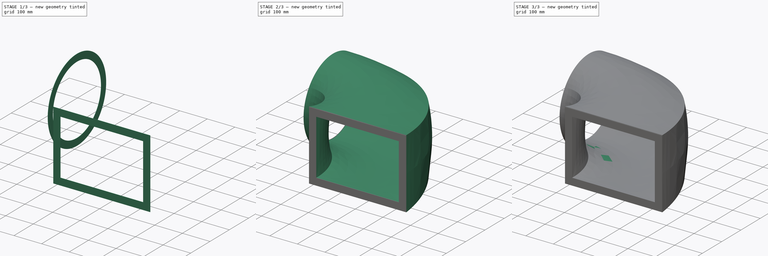
[diagram: build sequence overview — one tinted view per stage of 3, left to right]
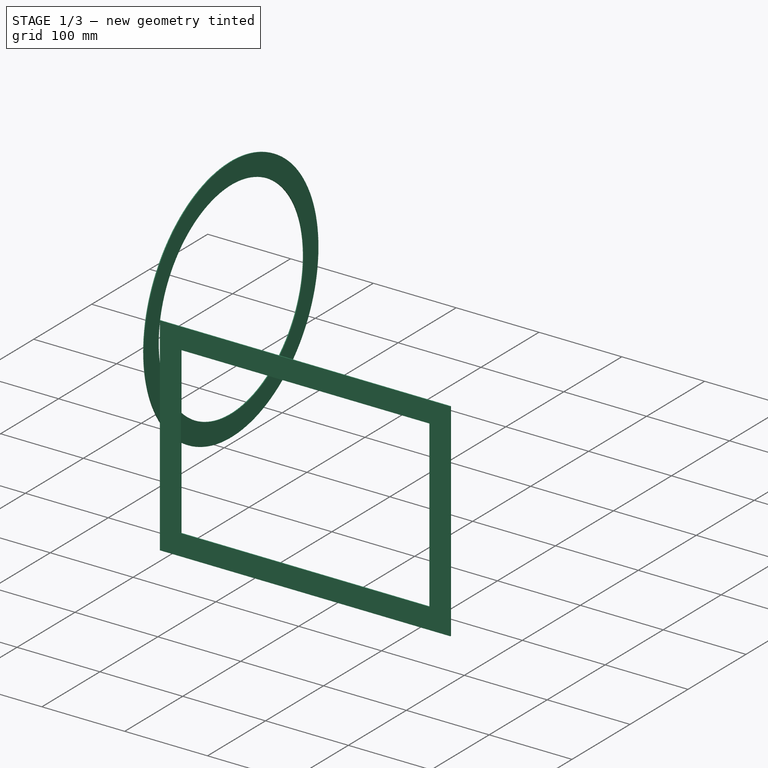
[diagram: stage 1 of 3 — iso view after this stage's code; geometry added in this stage tinted green]
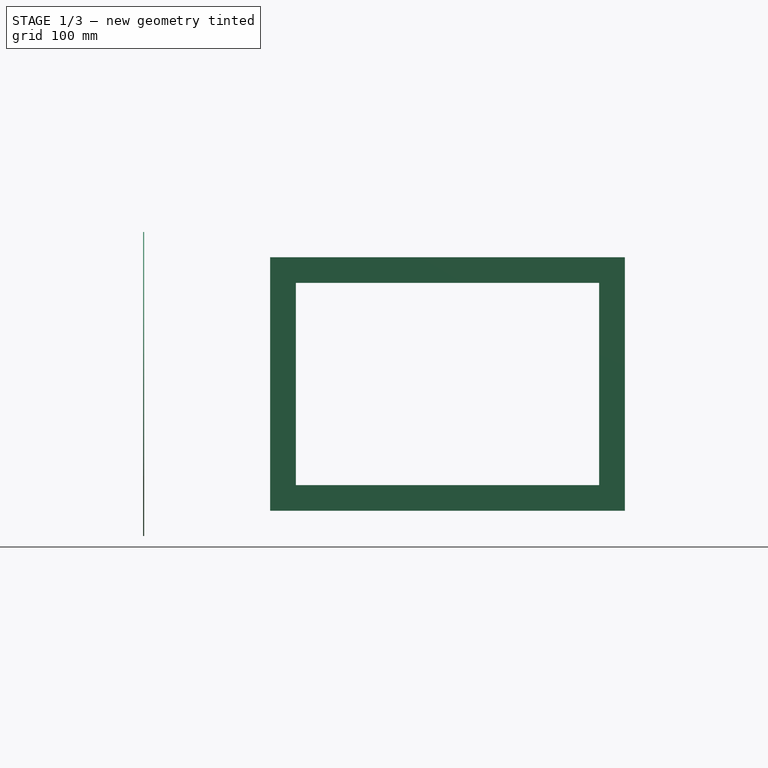
[diagram: stage 1 of 3 — front view after this stage's code; geometry added in this stage tinted green]
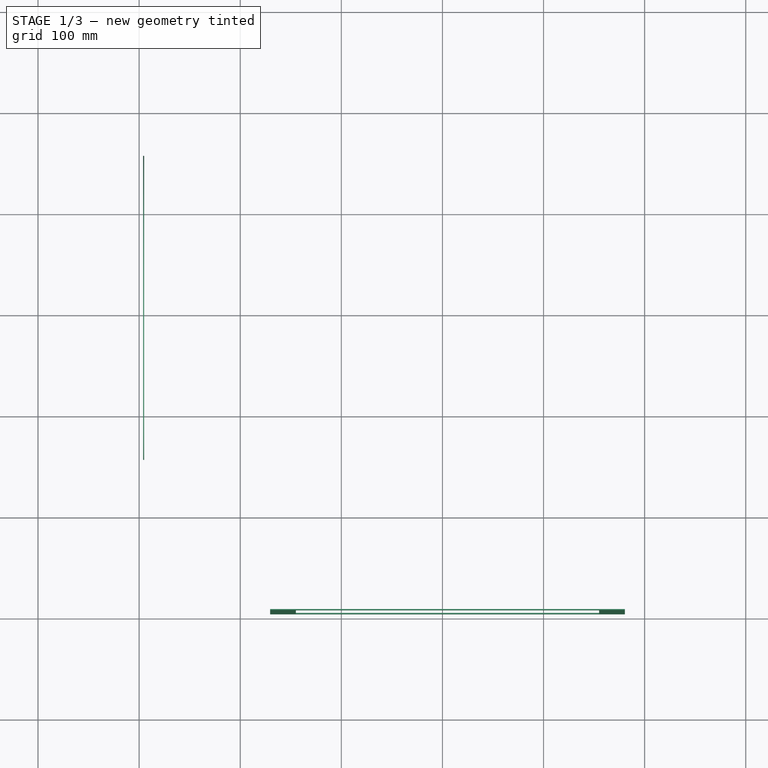
[diagram: stage 1 of 3 — top view after this stage's code; geometry added in this stage tinted green]
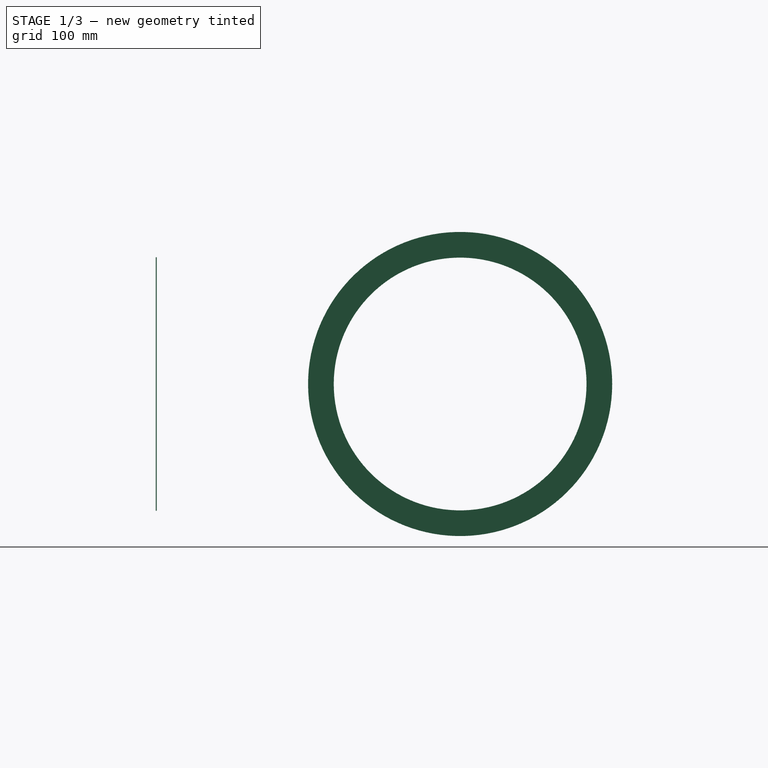
[diagram: stage 1 of 3 — right view after this stage's code; geometry added in this stage tinted green]
FCSTD DOCUMENT  (FreeCAD 1.0R38641 +468 (Git))
Label: Duct_curved_rectangular_circular_complete_R05
License: All rights reserved
LicenseURL: http://en.wikipedia.org/wiki/All_rights_reserved
objects: Sketcher::SketchObject×8, App::DocumentObjectGroup×4, TechDraw::DrawViewPart×4, Part::Sweep×3, App::MaterialObjectPython×2, Part::Cut×2, Part::Extrusion×2, Spreadsheet::Sheet×1, TechDraw::DrawSVGTemplate×1, TechDraw::DrawViewSpreadsheet×1, Part::Part2DObjectPython×1, App::TextDocument×1, App::VarSet×1, TechDraw::DrawViewSection×1, TechDraw::DrawPage×1, App::DocumentObjectGroupPython×1
note: 24 computed .brp shape members not serialized (recipe doc carries the construction recipe); baked Part::Feature solids carry a one-line shape summary decoded from their .brp

FEATURE [Part::Extrusion] Extrude  label="Flange_01_rectangular"
  Base = -> Sketch038
  Base_Area = 27980.6
  Dir = (0,-1,2e-16)
  DirMode = 2
  FaceMakerClass = Part::FaceMakerBullseye
  FaceMakerMode = 3
  LengthFwd = 1
  LengthRev = 0
  Material = -> Material049
  Solid = true
  Symmetric = false
  expr: Base_Area = .Shape.Face10.Area
  expr: LengthFwd = VarSet.Flange_Thickness
  expr: Material = VarSet.Materials_Sheet_metal
  expr: Visibility = VarSet.Flange_Flange_01 * (1 - VarSet.Duct_Show_volume_only)
FEATURE [Part::Extrusion] Extrude001  label="Flange_02_circular"
  Base = -> Sketch037
  Base_Area = 21975.9
  Dir = (1,-3.36025e-11,0)
  DirMode = 2
  FaceMakerClass = Part::FaceMakerBullseye
  FaceMakerMode = 3
  LengthFwd = 1
  LengthRev = 0
  Material = -> Material049
  Reversed = true
  Solid = true
  Symmetric = false
  expr: Base_Area = .Shape.Face4.Area
  expr: LengthFwd = VarSet.Flange_Thickness
  expr: Material = VarSet.Materials_Sheet_metal
  expr: Visibility = VarSet.Flange_Flange_02 * (1 - VarSet.Duct_Show_volume_only)
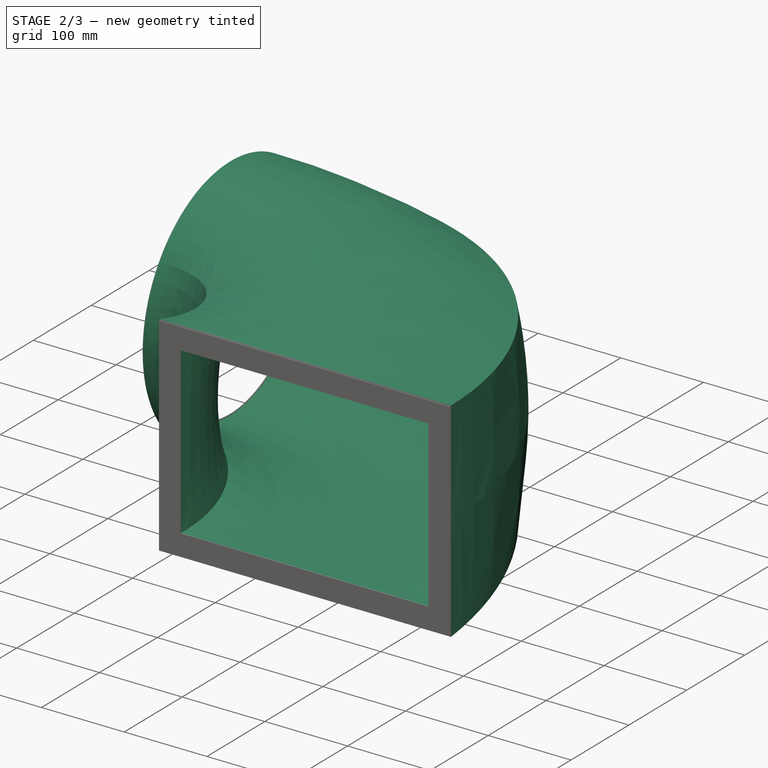
[diagram: stage 2 of 3 — iso view after this stage's code; geometry added in this stage tinted green]
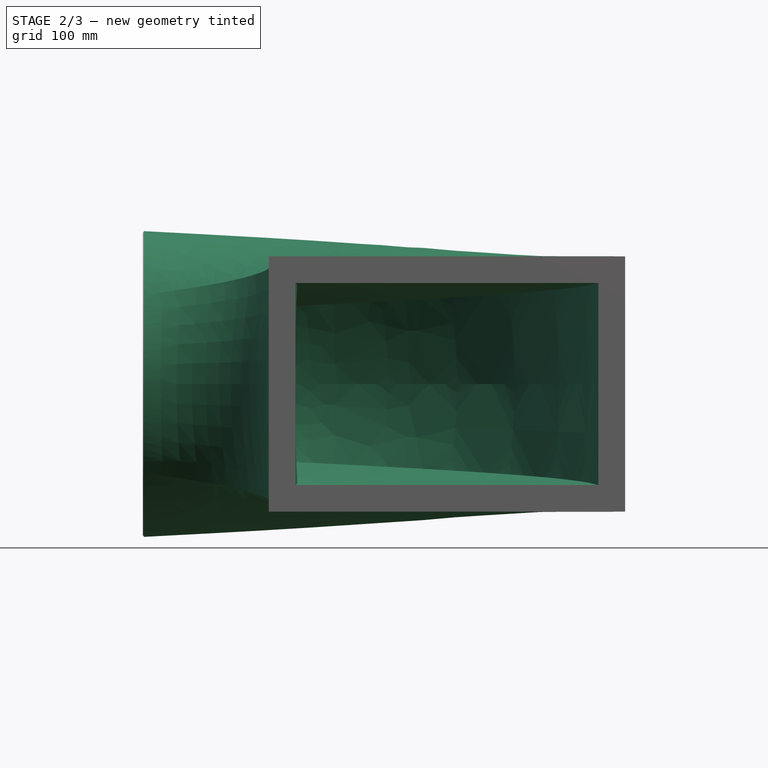
[diagram: stage 2 of 3 — front view after this stage's code; geometry added in this stage tinted green]
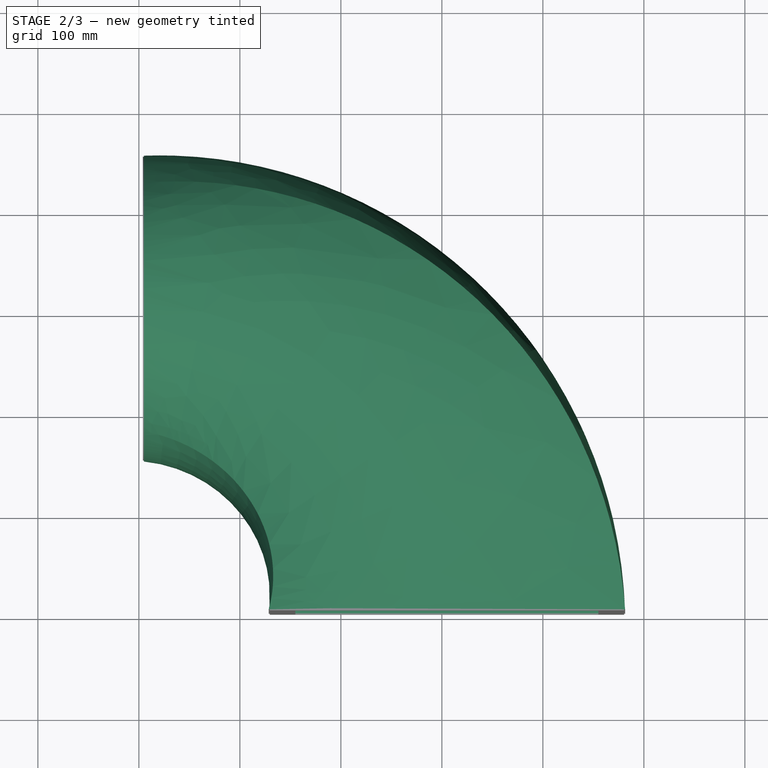
[diagram: stage 2 of 3 — top view after this stage's code; geometry added in this stage tinted green]
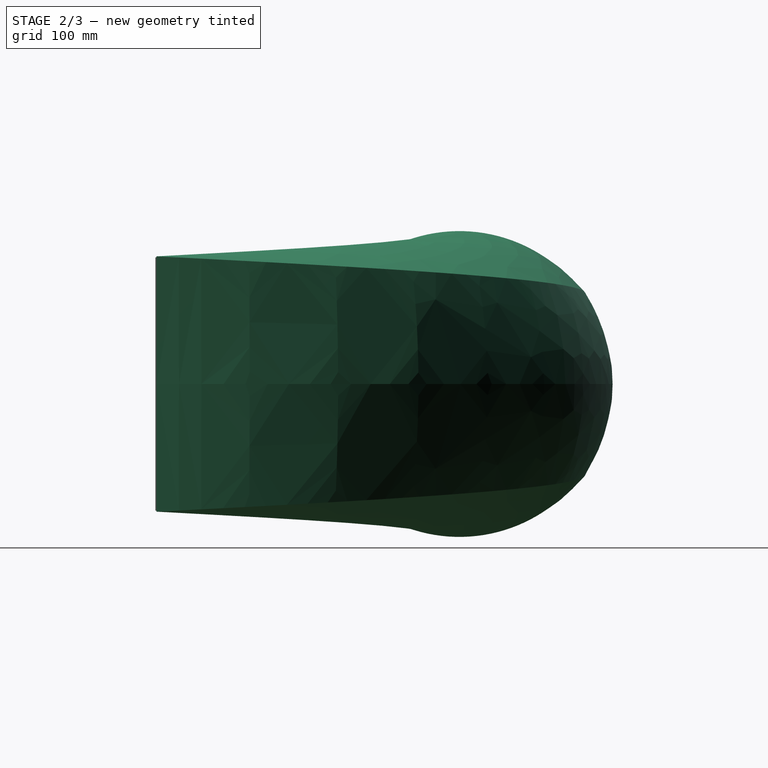
[diagram: stage 2 of 3 — right view after this stage's code; geometry added in this stage tinted green]
FEATURE [Sketcher::SketchObject] Sketch033  label="Opening_02_external_circular_"
  ArcFitTolerance = 0
  AttachmentSupport = -> [Arc]
  FullyConstrained = true
  MakeInternals = false
  MapMode = 7
  Placement = pos=(5,305,0) rot=(0.57735,0.57735,0.57735;2.0944rad)
  expr: .Constraints.Diameter = VarSet.Duct_Opening2_diameter + 2 * VarSet.Duct_Sheet_thickness
  expr: .Constraints.Horizontal_position = VarSet.Duct_Opening2_horizontal_position
  expr: .Constraints.Vertical_position = VarSet.Duct_Opening2_vertical_position
  expr: AttachmentSupport = VarSet.Duct_Axis
  expr: MapPathParameter = 1 - VarSet.Duct_Flip_axis
  sketch-geometry (1):
    g0: Circle CenterX=0 CenterY=0 CenterZ=0 NormalX=0 NormalY=0 NormalZ=1 AngleXU=0 Radius=126
  constraints (3):
    c: Diameter(g0) = 252  'Diameter'
    c: DistanceY(g-1,g0) = 0  'Vertical_position'
    c: DistanceX(g-1,g0) = 0  'Horizontal_position'
FEATURE [Sketcher::SketchObject] Sketch034  label="Opening_01_external_rectangular_"
  ArcFitTolerance = 0
  AttachmentSupport = -> [Arc]
  FullyConstrained = true
  MakeInternals = false
  MapMode = 7
  Placement = pos=(305,5,0) rot=(1,0,0;1.5708rad)
  expr: .AttachmentOffset.Base.z = 0
  expr: .Constraints.Height = VarSet.Duct_Opening1_height + 2 * VarSet.Duct_Sheet_thickness
  expr: .Constraints.Horizontal_position = VarSet.Duct_Opening1_horizontal_position
  expr: .Constraints.Vertical_position = VarSet.Duct_Opening1_vertical_position
  expr: .Constraints.Width = VarSet.Duct_Opening1_width + 2 * VarSet.Duct_Sheet_thickness
  expr: AttachmentSupport = VarSet.Duct_Axis
  expr: MapPathParameter = VarSet.Duct_Flip_axis
  sketch-geometry (7):
    g0: LineSegment StartX=-151 StartY=101 StartZ=0 EndX=151 EndY=101 EndZ=0
    g1: LineSegment StartX=151 StartY=101 StartZ=0 EndX=151 EndY=-101 EndZ=0
    g2: LineSegment StartX=151 StartY=-101 StartZ=0 EndX=-151 EndY=-101 EndZ=0
    g3: LineSegment StartX=-151 StartY=-101 StartZ=0 EndX=-151 EndY=101 EndZ=0
    g4: LineSegment [constr] StartX=-151 StartY=101 StartZ=0 EndX=151 EndY=-101 EndZ=0
    g5: LineSegment [constr] StartX=-151 StartY=-101 StartZ=0 EndX=151 EndY=101 EndZ=0
    g6: GeomPoint [constr] X=0 Y=0 Z=0
  constraints (18):
    c: Coincident(g0,g1)
    c: Coincident(g1,g2)
    c: Coincident(g2,g3)
    c: Coincident(g3,g0)
    c: Horizontal(g0)
    c: Horizontal(g2)
    c: Vertical(g1)
    c: Vertical(g3)
    c: Coincident(g4,g0)
    c: Coincident(g4,g1)
    c: Coincident(g5,g2)
    c: Coincident(g5,g0)
    c: DistanceX(g0,g0) = 302  'Width'
    c: DistanceY(g1,g1) = 202  'Height'
    c: PointOnObject(g6,g5)
    c: PointOnObject(g6,g4)
    c: DistanceY(g-1,g6) = 0  'Vertical_position'
    c: DistanceX(g-1,g6) = 0  'Horizontal_position'
FEATURE [Part::Sweep] Sweep003  label="Duct_external_volume_"
  Frenet = true
  Sections = -> [Sketch034,Sketch033]
  Solid = true
  Spine = -> Arc
  Transition = 0
  expr: Spine = VarSet.Duct_Axis
FEATURE [Sketcher::SketchObject] Sketch035  label="Opening_02_external_circular_insulation"
  ArcFitTolerance = 0
  AttachmentSupport = -> [Arc]
  FullyConstrained = true
  MakeInternals = false
  MapMode = 7
  Placement = pos=(5,305,0) rot=(0.57735,0.57735,0.57735;2.0944rad)
  expr: .Constraints.Diameter = VarSet.Duct_Opening2_diameter + 2 * VarSet.Duct_Sheet_thickness + 2 * VarSet.Insulation_Thickness
  expr: .Constraints.Horizontal_position = VarSet.Duct_Opening2_horizontal_position
  expr: .Constraints.Vertical_position = VarSet.Duct_Opening2_vertical_position
  expr: AttachmentSupport = VarSet.Duct_Axis
  expr: MapPathParameter = 1 - VarSet.Duct_Flip_axis
  sketch-geometry (1):
    g0: Circle CenterX=0 CenterY=0 CenterZ=0 NormalX=0 NormalY=0 NormalZ=1 AngleXU=0 Radius=151.4
  constraints (3):
    c: Diameter(g0) = 302.8  'Diameter'
    c: DistanceY(g-1,g0) = 0  'Vertical_position'
    c: DistanceX(g-1,g0) = 0  'Horizontal_position'
FEATURE [Sketcher::SketchObject] Sketch036  label="Opening_01_external_rectangular_insulation"
  ArcFitTolerance = 0
  AttachmentSupport = -> [Arc]
  FullyConstrained = true
  MakeInternals = false
  MapMode = 7
  Placement = pos=(305,5,0) rot=(1,0,0;1.5708rad)
  expr: .AttachmentOffset.Base.z = 0
  expr: .Constraints.Height = VarSet.Duct_Opening1_height + 2 * VarSet.Duct_Sheet_thickness + 2 * VarSet.Insulation_Thickness
  expr: .Constraints.Horizontal_position = VarSet.Duct_Opening1_horizontal_position
  expr: .Constraints.Vertical_position = VarSet.Duct_Opening1_vertical_position
  expr: .Constraints.Width = VarSet.Duct_Opening1_width + 2 * VarSet.Duct_Sheet_thickness + 2 * VarSet.Insulation_Thickness
  expr: AttachmentSupport = VarSet.Duct_Axis
  expr: MapPathParameter = VarSet.Duct_Flip_axis
  sketch-geometry (7):
    g0: LineSegment StartX=-176.4 StartY=126.4 StartZ=0 EndX=176.4 EndY=126.4 EndZ=0
    g1: LineSegment StartX=176.4 StartY=126.4 StartZ=0 EndX=176.4 EndY=-126.4 EndZ=0
    g2: LineSegment StartX=176.4 StartY=-126.4 StartZ=0 EndX=-176.4 EndY=-126.4 EndZ=0
    g3: LineSegment StartX=-176.4 StartY=-126.4 StartZ=0 EndX=-176.4 EndY=126.4 EndZ=0
    g4: LineSegment [constr] StartX=-176.4 StartY=126.4 StartZ=0 EndX=176.4 EndY=-126.4 EndZ=0
    g5: LineSegment [constr] StartX=-176.4 StartY=-126.4 StartZ=0 EndX=176.4 EndY=126.4 EndZ=0
    g6: GeomPoint [constr] X=0 Y=0 Z=0
  constraints (18):
    c: Coincident(g0,g1)
    c: Coincident(g1,g2)
    c: Coincident(g2,g3)
    c: Coincident(g3,g0)
    c: Horizontal(g0)
    c: Horizontal(g2)
    c: Vertical(g1)
    c: Vertical(g3)
    c: Coincident(g4,g0)
    c: Coincident(g4,g1)
    c: Coincident(g5,g2)
    c: Coincident(g5,g0)
    c: DistanceX(g0,g0) = 352.8  'Width'
    c: DistanceY(g1,g1) = 252.8  'Height'
    c: PointOnObject(g6,g5)
    c: PointOnObject(g6,g4)
    c: DistanceY(g-1,g6) = 0  'Vertical_position'
    c: DistanceX(g-1,g6) = 0  'Horizontal_position'
FEATURE [Part::Sweep] Sweep004  label="Duct_external_volume_insulation"
  Frenet = false
  Sections = -> [Sketch036,Sketch035]
  Solid = true
  Spine = -> Arc
  Transition = 0
  expr: Spine = VarSet.Duct_Axis
FEATURE [App::MaterialObjectPython] Material050  label="glass wool with aluminium foill generic"  # material (typed FeaturePython)
  Material = AuthorAndLicense=Uwe Stöhr; CardName=Iron-Generic; Color=(0.8, 0.8, 0.8, 1.0); Density=7874 kg/m^3; DiffuseColor=(0.7372549176216125, 0.7372549176216125, 0.7372549176216125); ElectricalConductivity=10.3 MS/m; Father=Metal; KindOfMaterial=Iron; Name=glass wool with aluminium foill generic; PoissonRatio=0.29; RelativePermeability=5000.0; SectionColor=(0.8, 0.8, 0.8, 1.0); ShearModulus=82.0 GPa; SpecificHeat=460.5 J/kg/K; ThermalConductivity=80.4 W/m/K; ThermalExpansionCoefficient=11.8 µm/m/K; Transparency=0; UltimateTensileStrength=497 MPa; ViewColor=(0.8, 0.8, 0.8, 1.0); YieldStrength=428 MPa; YoungsModulus=211 GPa
  Transparency = 0
FEATURE [App::VarSet] VarSet  label="Duct_curved_rectangular_circular_properties"
  Duct_Axis = -> Arc
  Duct_Duct = true
  Duct_Flip_axis = false
  Duct_Opening1_height = 200
  Duct_Opening1_horizontal_position = 0
  Duct_Opening1_vertical_position = 0
  Duct_Opening1_width = 300
  Duct_Opening2_diameter = 250
  Duct_Opening2_horizontal_position = 0
  Duct_Opening2_vertical_position = 0
  Duct_Sheet_thickness = 1
  Duct_Show_volume_only = false
  Flange_Flange_01 = true
  Flange_Flange_02 = true
  Flange_Height = 25.4
  Flange_Thickness = 1
  Insulation_Insulation = false
  Insulation_Thickness = 25.4
  Materials_Insulation = -> Material050
  Materials_Sheet_metal = -> Material049
  expr: Insulation_Thickness = 1 in
FEATURE [Part::Cut] Cut001  label="Insulation001"
  Base = -> Sweep004
  Base_Area = 501388
  Material = -> Material050
  Tool = -> Sweep003
  expr: Base_Area = .Shape.Face1.Area + .Shape.Face2.Area + .Shape.Face4.Area + .Shape.Face6.Area + .Shape.Face7.Area
  expr: Material = VarSet.Materials_Insulation
  expr: Visibility = VarSet.Insulation_Insulation * (1 - VarSet.Duct_Show_volume_only)
FEATURE [App::DocumentObjectGroup] Group  label="Components"
  Group = -> [Cut,Extrude,Extrude001,Cut001]
FEATURE [TechDraw::DrawViewPart] View004  label="Isometric"
  CoarseView = false
  Direction = (0.57735,-0.57735,0.57735)
  Focus = 100
  HardHidden = false
  IsoCount = 0
  IsoHidden = false
  IsoVisible = false
  LockPosition = false
  Perspective = false
  Rotation = 0
  Scale = 0.05
  ScaleType = 2
  ScrubCount = 0
  SeamHidden = false
  SeamVisible = true
  SmoothHidden = false
  SmoothVisible = true
  Source = -> [Cut,Extrude,Extrude001,Cut001]
  X = 327.087
  XDirection = (0.707107,0.707107,0)
  Y = 216.279
FEATURE [TechDraw::DrawViewPart] View
  CoarseView = false
  Direction = (0,-1,0)
  Focus = 100
  HardHidden = false
  IsoCount = 0
  IsoHidden = false
  IsoVisible = false
  LockPosition = false
  Perspective = false
  Rotation = 0
  Scale = 0.05
  ScaleType = 2
  ScrubCount = 0
  SeamHidden = false
  SeamVisible = true
  SmoothHidden = false
  SmoothVisible = true
  Source = -> [Cut,Extrude,Extrude001,Cut001]
  X = 168.379
  XDirection = (1,0,0)
  Y = 97.9223
FEATURE [TechDraw::DrawViewPart] View005
  CoarseView = false
  Direction = (0,0,1)
  Focus = 100
  HardHidden = false
  IsoCount = 0
  IsoHidden = false
  IsoVisible = false
  LockPosition = false
  Perspective = false
  Rotation = 0
  Scale = 0.05
  ScaleType = 2
  ScrubCount = 0
  SeamHidden = false
  SeamVisible = true
  SmoothHidden = false
  SmoothVisible = true
  Source = -> [Cut,Extrude,Extrude001,Cut001]
  X = 73.2777
  XDirection = (1,0,0)
  Y = 217.223
FEATURE [TechDraw::DrawViewPart] View006
  CoarseView = false
  Direction = (-1,0,0)
  Focus = 100
  HardHidden = false
  IsoCount = 0
  IsoHidden = false
  IsoVisible = false
  LockPosition = false
  Perspective = false
  Rotation = 0
  Scale = 0.05
  ScaleType = 2
  ScrubCount = 0
  SeamHidden = false
  SeamVisible = true
  SmoothHidden = false
  SmoothVisible = true
  Source = -> [Cut,Extrude,Extrude001,Cut001]
  X = 77.3709
  XDirection = (0,-1,0)
  Y = 95.9607
FEATURE [TechDraw::DrawViewSection] SectionView  label="Section  - "
  BaseView = -> View
  CoarseView = false
  CutSurfaceDisplay = 2
  Direction = (1e-16,0,1)
  FileGeomPattern = <path>
  FileHatchPattern = <path>
  Focus = 100
  FuseBeforeCut = false
  HardHidden = false
  HatchOffset = (0,0,0)
  HatchRotation = 0
  HatchScale = 1
  IsoCount = 0
  IsoHidden = false
  IsoVisible = false
  LockPosition = false
  NameGeomPattern = Diamante
  Perspective = false
  Rotation = 0
  Scale = 0.05
  ScaleType = 2
  ScrubCount = 0
  SeamHidden = false
  SeamVisible = true
  SectionDirection = 4
  SectionLineStretch = 1
  SectionNormal = (1e-16,0,1)
  SectionOrigin = (241.7,229.34,0)
  SmoothHidden = false
  SmoothVisible = true
  Source = -> [Cut,Extrude,Extrude001,Cut001]
  TrimAfterCut = false
  UsePreviousCut = false
  X = 183.614
  XDirection = (1,0,-1e-16)
  Y = 216.399
FEATURE [TechDraw::DrawPage] Page  label="Sheet_01"
  KeepUpdated = true
  NextBalloonIndex = 1
  ProjectionType = 0
  Template = -> Template
  Views = -> [Sheet,View004,View,View005,View006,SectionView]
FEATURE [App::DocumentObjectGroup] Group002  label="Drawings_"
  Group = -> [Page]
FEATURE [App::DocumentObjectGroupPython] MaterialContainer001  label="Materials001"  # scripted group (container) (typed FeaturePython)
  Group = -> [Material049,Material050]
FEATURE [App::DocumentObjectGroup] Group003  label="Duct_curved_rectangular_circular_#_"
  Group = -> [VarSet,Group,Group001,Group002,Text_document,MaterialContainer001]
note: 2 file-system paths scrubbed to <path> (originals preserved in the JSON sidecar)
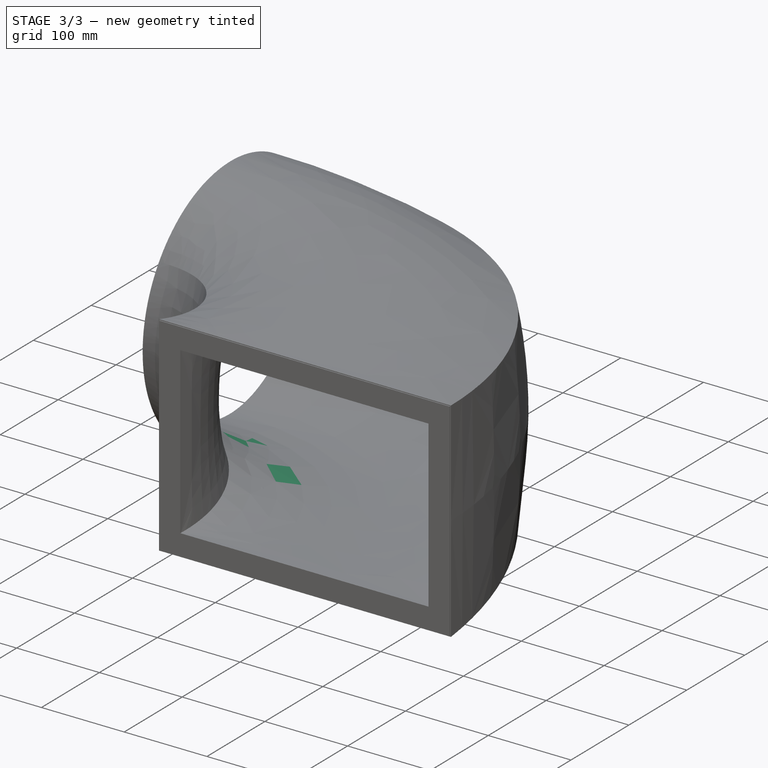
[diagram: stage 3 of 3 — iso view after this stage's code; geometry added in this stage tinted green]
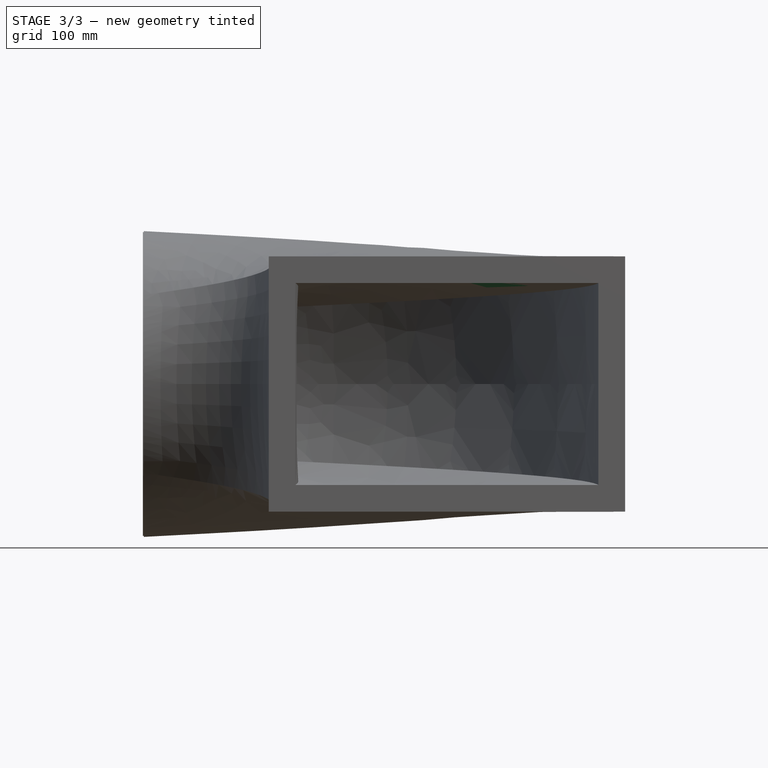
[diagram: stage 3 of 3 — front view after this stage's code; geometry added in this stage tinted green]
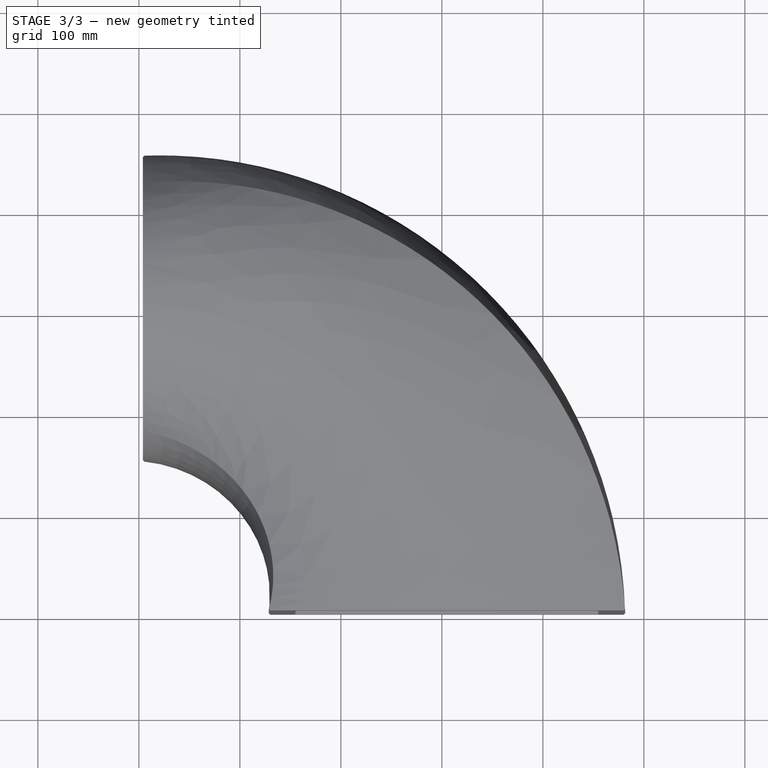
[diagram: stage 3 of 3 — top view after this stage's code; geometry added in this stage tinted green]
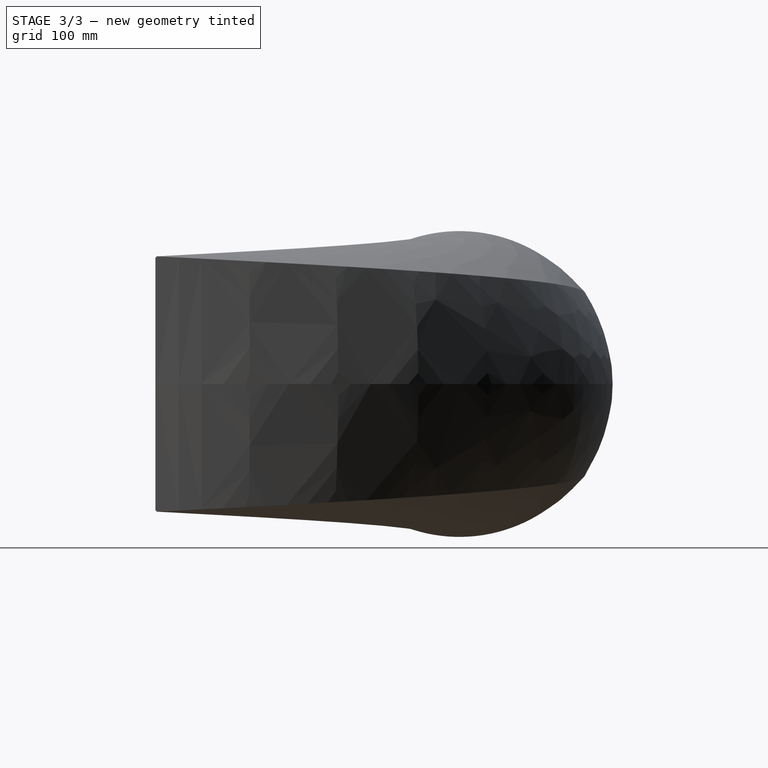
[diagram: stage 3 of 3 — right view after this stage's code; geometry added in this stage tinted green]
FEATURE [Spreadsheet::Sheet] Spreadsheet003  label="Output_curved_rectangular_circular_duct_"
  cells = A1='Description:; A2==<<Curved (%s>> % round(VarSet.Duct_Axis.LastAngle - VarSet.Duct_Axis.FirstAngle) + <<) rectangular circular duct for air conditioning composed of %s>> % VarSet.Duct_Sheet_thickness + << thick %s>> % VarSet.Materials_Sheet_metal.Label + << sheets (openings of %s x %s>> % tuple(VarSet.Duct_Opening1_width; VarSet.Duct_Opening1_height) + << in width and height, and %s>> % VarSet.Duct_Opening2_diameter + << in diameter)>> + VarSet.Insulation_Insulation * (<< with an external insulation layer of %s>> % VarSet.Insulation_Thickness + << thick %s>> % VarSet.Materials_Insulation.Label + << blanket>>) + <<.>>; A5='Components; B5='Angle; C5='D; D5='W; E5='H; F5='T; G5='Area; H5='Material; A6='1. Elbow rectangular circular; G6==Cut.Base_Area; H6==VarSet.Materials_Sheet_metal.Label; A7='1.1. Elbow angle:; B7==VarSet.Duct_Axis.LastAngle - VarSet.Duct_Axis.FirstAngle; A8='1.2. Opening 1:; D8==VarSet.Duct_Opening1_width; E8==VarSet.Duct_Opening1_height; A9='1.3. Opening 2:; C9==VarSet.Duct_Opening2_diameter; A10='1.4. Sheet thickness:; F10==VarSet.Duct_Sheet_thickness; A11='2. Flanges; G11==(VarSet.Flange_Flange_01 + VarSet.Flange_Flange_02 - VarSet.Flange_Flange_01 * VarSet.Flange_Flange_02) * str(round(Extrude.Base_Area * VarSet.Flange_Flange_01 + Extrude001.Base_Area * VarSet.Flange_Flange_02)); H11==(VarSet.Flange_Flange_01 + VarSet.Flange_Flange_02 - VarSet.Flange_Flange_01 * VarSet.Flange_Flange_02) * VarSet.Materials_Sheet_metal.Label; A12='2.1. Flanges height:; E12==(VarSet.Flange_Flange_01 + VarSet.Flange_Flange_02 - VarSet.Flange_Flange_01 * VarSet.Flange_Flange_02) * str(VarSet.Flange_Height); A13='2.2. Flanges thickness:; F13==(VarSet.Flange_Flange_01 + VarSet.Flange_Flange_02 - VarSet.Flange_Flange_01 * VarSet.Flange_Flange_02) * str(VarSet.Flange_Thickness); A14='3. Insulation; G14==VarSet.Insulation_Insulation * str(round(Cut001.Base_Area)) + <<--->> * (1 - VarSet.Insulation_Insulation); H14==VarSet.Materials_Insulation.Label * VarSet.Insulation_Insulation + <<--->> * (1 - VarSet.Insulation_Insulation); A15='3.1. Insulation thickness:; F15==str(VarSet.Insulation_Thickness) * VarSet.Insulation_Insulation + <<--->> * (1 - VarSet.Insulation_Insulation)
FEATURE [App::DocumentObjectGroup] Group001  label="Spreadsheet_output_"
  Group = -> [Spreadsheet003]
FEATURE [TechDraw::DrawSVGTemplate] Template
  EditableTexts = AUTHOR_NAME=AUTHOR NAME; DN=DN; DRAWING_TITLE=DRAWING TITLE; FC-DATE=DD/MM/YYYY; FC-REV=REV A; FC-SC=1/20; FC-SH=X / Y; FC-SI=A3; FreeCAD_DRAWING=Rectangular circular duct; PN=PN
  Height = 297
  Orientation = 1
  Template = <userpath>/.cache/FreeCAD/Cache/FreeCAD_Doc_4981bfa1-569c-477a-b416-fe8666e2ccff_ac79a2_6794/A3_Landscape_ISO7200TD.svg
  Width = 420
FEATURE [TechDraw::DrawViewSpreadsheet] Sheet  label="Spreadsheet"
  CellEnd = H15
  CellStart = A5
  Font = Arial
  LineWidth = 0.35
  LockPosition = false
  Rotation = 0
  Scale = 0.8
  ScaleType = 2
  Source = -> Spreadsheet003
  Symbol = <blob: 20411 chars omitted>
  TextSize = 14
  X = 320.077
  Y = 108.777
  expr: Scale = 0.8
FEATURE [Part::Part2DObjectPython] Arc  label="Axis_"  # Draft 2D object (typed FeaturePython)
  Area = 0
  FirstAngle = 0
  LastAngle = 90
  MakeFace = false
  Placement = pos=(5,5,0) rot=(0,0,1;0rad)
  Radius = 300
FEATURE [Sketcher::SketchObject] Sketch  label="Opening_02_internal_circular_001"
  ArcFitTolerance = 0
  AttachmentSupport = -> [Arc]
  FullyConstrained = true
  MakeInternals = false
  MapMode = 7
  Placement = pos=(5,305,0) rot=(0.57735,0.57735,0.57735;2.0944rad)
  expr: .Constraints.Diameter = VarSet.Duct_Opening2_diameter
  expr: .Constraints.Horizontal_position = VarSet.Duct_Opening2_horizontal_position
  expr: .Constraints.Vertical_position = VarSet.Duct_Opening2_vertical_position
  expr: AttachmentSupport = VarSet.Duct_Axis
  expr: MapPathParameter = 1 - VarSet.Duct_Flip_axis
  sketch-geometry (1):
    g0: Circle CenterX=0 CenterY=0 CenterZ=0 NormalX=0 NormalY=0 NormalZ=1 AngleXU=0 Radius=125
  constraints (3):
    c: Diameter(g0) = 250  'Diameter'
    c: DistanceY(g-1,g0) = 0  'Vertical_position'
    c: DistanceX(g-1,g0) = 0  'Horizontal_position'
FEATURE [Sketcher::SketchObject] Sketch032  label="Opening_01_internal_rectangular_001"
  ArcFitTolerance = 0
  AttachmentSupport = -> [Arc]
  FullyConstrained = true
  MakeInternals = false
  MapMode = 7
  Placement = pos=(305,5,0) rot=(1,0,0;1.5708rad)
  expr: .AttachmentOffset.Base.z = 0
  expr: .Constraints.Height = VarSet.Duct_Opening1_height
  expr: .Constraints.Horizontal_position = VarSet.Duct_Opening1_horizontal_position
  expr: .Constraints.Vertical_position = VarSet.Duct_Opening1_vertical_position
  expr: .Constraints.Width = VarSet.Duct_Opening1_width
  expr: AttachmentSupport = VarSet.Duct_Axis
  expr: MapPathParameter = VarSet.Duct_Flip_axis
  sketch-geometry (7):
    g0: LineSegment StartX=-150 StartY=100 StartZ=0 EndX=150 EndY=100 EndZ=0
    g1: LineSegment StartX=150 StartY=100 StartZ=0 EndX=150 EndY=-100 EndZ=0
    g2: LineSegment StartX=150 StartY=-100 StartZ=0 EndX=-150 EndY=-100 EndZ=0
    g3: LineSegment StartX=-150 StartY=-100 StartZ=0 EndX=-150 EndY=100 EndZ=0
    g4: LineSegment [constr] StartX=-150 StartY=100 StartZ=0 EndX=150 EndY=-100 EndZ=0
    g5: LineSegment [constr] StartX=-150 StartY=-100 StartZ=0 EndX=150 EndY=100 EndZ=0
    g6: GeomPoint [constr] X=0 Y=0 Z=0
  constraints (18):
    c: Coincident(g0,g1)
    c: Coincident(g1,g2)
    c: Coincident(g2,g3)
    c: Coincident(g3,g0)
    c: Horizontal(g0)
    c: Horizontal(g2)
    c: Vertical(g1)
    c: Vertical(g3)
    c: Coincident(g4,g0)
    c: Coincident(g4,g1)
    c: Coincident(g5,g2)
    c: Coincident(g5,g0)
    c: DistanceX(g0,g0) = 300  'Width'
    c: DistanceY(g1,g1) = 200  'Height'
    c: PointOnObject(g6,g5)
    c: PointOnObject(g6,g4)
    c: DistanceY(g-1,g6) = 0  'Vertical_position'
    c: DistanceX(g-1,g6) = 0  'Horizontal_position'
FEATURE [Part::Sweep] Sweep002  label="Duct_internal_volume_"
  Frenet = false
  Sections = -> [Sketch032,Sketch]
  Solid = true
  Spine = -> Arc
  Transition = 1
  expr: Spine = VarSet.Duct_Axis
  expr: Visibility = VarSet.Duct_Show_volume_only
FEATURE [Sketcher::SketchObject] Sketch037  label="Opening_02_circular_flange"
  ArcFitTolerance = 0
  AttachmentSupport = -> [Arc]
  FullyConstrained = true
  MakeInternals = false
  MapMode = 7
  Placement = pos=(5,305,0) rot=(0.57735,0.57735,0.57735;2.0944rad)
  expr: .Constraints.Diameter_external = VarSet.Duct_Opening2_diameter + 2 * VarSet.Flange_Height
  expr: .Constraints.Diameter_internal = VarSet.Duct_Opening2_diameter
  expr: .Constraints.Horizontal_position = VarSet.Duct_Opening2_horizontal_position
  expr: .Constraints.Vertical_position = VarSet.Duct_Opening2_vertical_position
  expr: AttachmentSupport = VarSet.Duct_Axis
  expr: MapPathParameter = 1 - VarSet.Duct_Flip_axis
  sketch-geometry (2):
    g0: Circle CenterX=0 CenterY=0 CenterZ=0 NormalX=0 NormalY=0 NormalZ=1 AngleXU=0 Radius=125
    g1: Circle CenterX=0 CenterY=0 CenterZ=0 NormalX=0 NormalY=0 NormalZ=1 AngleXU=0 Radius=150.4
  constraints (5):
    c: Diameter(g0) = 250  'Diameter_internal'
    c: DistanceY(g-1,g0) = 0  'Vertical_position'
    c: DistanceX(g-1,g0) = 0  'Horizontal_position'
    c: Coincident(g1,g0)
    c: Diameter(g1) = 300.8  'Diameter_external'
FEATURE [Sketcher::SketchObject] Sketch038  label="Opening_01_rectangular_flange"
  ArcFitTolerance = 0
  AttachmentSupport = -> [Arc]
  FullyConstrained = true
  MakeInternals = false
  MapMode = 7
  Placement = pos=(305,5,0) rot=(1,0,0;1.5708rad)
  expr: .AttachmentOffset.Base.z = 0
  expr: .Constraints.Height_external = VarSet.Duct_Opening1_height + 2 * VarSet.Flange_Height
  expr: .Constraints.Height_internal = VarSet.Duct_Opening1_height
  expr: .Constraints.Horizontal_position = VarSet.Duct_Opening1_horizontal_position
  expr: .Constraints.Vertical_position = VarSet.Duct_Opening1_vertical_position
  expr: .Constraints.Width_external = VarSet.Duct_Opening1_width + 2 * VarSet.Flange_Height
  expr: .Constraints.Width_internal = VarSet.Duct_Opening1_width
  expr: AttachmentSupport = VarSet.Duct_Axis
  expr: MapPathParameter = VarSet.Duct_Flip_axis
  sketch-geometry (14):
    g0: LineSegment StartX=-150 StartY=100 StartZ=0 EndX=150 EndY=100 EndZ=0
    g1: LineSegment StartX=150 StartY=100 StartZ=0 EndX=150 EndY=-100 EndZ=0
    g2: LineSegment StartX=150 StartY=-100 StartZ=0 EndX=-150 EndY=-100 EndZ=0
    g3: LineSegment StartX=-150 StartY=-100 StartZ=0 EndX=-150 EndY=100 EndZ=0
    g4: LineSegment [constr] StartX=-150 StartY=100 StartZ=0 EndX=150 EndY=-100 EndZ=0
    g5: LineSegment [constr] StartX=-150 StartY=-100 StartZ=0 EndX=150 EndY=100 EndZ=0
    g6: GeomPoint [constr] X=0 Y=0 Z=0
    g7: LineSegment StartX=-175.4 StartY=125.4 StartZ=0 EndX=175.4 EndY=125.4 EndZ=0
    g8: LineSegment StartX=175.4 StartY=125.4 StartZ=0 EndX=175.4 EndY=-125.4 EndZ=0
    g9: LineSegment StartX=175.4 StartY=-125.4 StartZ=0 EndX=-175.4 EndY=-125.4 EndZ=0
    g10: LineSegment StartX=-175.4 StartY=-125.4 StartZ=0 EndX=-175.4 EndY=125.4 EndZ=0
    g11: LineSegment [constr] StartX=-175.4 StartY=125.4 StartZ=0 EndX=175.4 EndY=-125.4 EndZ=0
    g12: LineSegment [constr] StartX=-175.4 StartY=-125.4 StartZ=0 EndX=175.4 EndY=125.4 EndZ=0
    g13: GeomPoint [constr] X=0 Y=0 Z=0
  constraints (35):
    c: Coincident(g0,g1)
    c: Coincident(g1,g2)
    c: Coincident(g2,g3)
    c: Coincident(g3,g0)
    c: Horizontal(g0)
    c: Horizontal(g2)
    c: Vertical(g1)
    c: Vertical(g3)
    c: Coincident(g4,g0)
    c: Coincident(g4,g1)
    c: Coincident(g5,g2)
    c: Coincident(g5,g0)
    c: DistanceX(g0,g0) = 300  'Width_internal'
    c: DistanceY(g1,g1) = 200  'Height_internal'
    c: PointOnObject(g6,g5)
    c: PointOnObject(g6,g4)
    c: DistanceY(g-1,g6) = 0  'Vertical_position'
    c: DistanceX(g-1,g6) = 0  'Horizontal_position'
    c: Coincident(g7,g8)
    c: Coincident(g8,g9)
    c: Coincident(g9,g10)
    c: Coincident(g10,g7)
    c: Horizontal(g7)
    c: Horizontal(g9)
    c: Vertical(g8)
    c: Vertical(g10)
    c: Coincident(g11,g7)
    c: Coincident(g11,g8)
    c: Coincident(g12,g9)
    c: Coincident(g12,g7)
    c: PointOnObject(g13,g12)
    c: PointOnObject(g13,g11)
    c: DistanceX(g7,g7) = 350.8  'Width_external'
    c: DistanceY(g8,g8) = 250.8  'Height_external'
    c: Coincident(g6,g13)
FEATURE [App::TextDocument] Text_document  label="Instructions"
  Text = 1. Construction of the axes in the final position of the project:\n\n. Use only individual lines and curves to construct the axes in the final position of the duct network project, one for each duct section;\n\n. Do not use polylines or sketches. If there is already a network with these elements, transform them into individual lines and curves;\n\n. Before applying the ducts in the final network, review the spreadsheets and drawings of the duct files according to the project needs. This will reduce the final review work (see item 3). Be careful not to erase the automation (using expressions) contained in the spreadsheet fields.\n\n2. Application of the component in the final project (see the corresponding tutorial videos):\n\n. In the duct properties window, replace the existing axis with the corresponding section of the final project (Axis of Ducts field);\n\n. Adjust the dimensions of openings 1 and 2 according to the design. If these pre-set dimensions are large in relation to the duct axis radius, this may distort the shape of the duct, but this should be corrected after adjustment to the design;\n\n. If necessary, invert the duct axis so that openings 1 or 2 swap positions (Flip_axis field of Ducts);\n\n3. Review of individual drawings\n\n. After inserting the ducts into the designed network, review the individual drawings contained in the duct files, according to your needs (scale, dimensions, notes, views, etc.).\n\n4. General drawing of the network\n\n. If you prefer, you can create a spreadsheet of the ducts used linked to the individual ones, presenting a summary of the descriptions, areas, materials, dimensions, as well as their sums.\n\n5. Help and comments\n\n. If you encounter any problems and require help or want to make a comment, use the FreeCAD forum for this purpose.
FEATURE [App::MaterialObjectPython] Material049  label="galvanized steel generic"  # material (typed FeaturePython)
  Material = AuthorAndLicense=Uwe Stöhr; CardName=Iron-Generic; Color=(0.8, 0.8, 0.8, 1.0); Density=7874 kg/m^3; DiffuseColor=(0.3607843220233917, 0.3607843220233917, 0.40784314274787903); ElectricalConductivity=10.3 MS/m; Father=Metal; KindOfMaterial=Iron; Name=galvanized steel generic; PoissonRatio=0.29; RelativePermeability=5000.0; SectionColor=(0.8, 0.8, 0.8, 1.0); ShearModulus=82.0 GPa; SpecificHeat=460.5 J/kg/K; ThermalConductivity=80.4 W/m/K; ThermalExpansionCoefficient=11.8 µm/m/K; Transparency=0; UltimateTensileStrength=497 MPa; ViewColor=(0.8, 0.8, 0.8, 1.0); YieldStrength=428 MPa; YoungsModulus=211 GPa
  Transparency = 0
FEATURE [Part::Cut] Cut  label="Duct_"
  Base = -> Sweep003
  Base_Area = 416599
  Material = -> Material049
  Tool = -> Sweep002
  expr: Base_Area = .Shape.Face1.Area + .Shape.Face2.Area + .Shape.Face4.Area + .Shape.Face6.Area + .Shape.Face7.Area
  expr: Material = VarSet.Materials_Sheet_metal
  expr: Visibility = VarSet.Duct_Duct * (1 - VarSet.Duct_Show_volume_only)
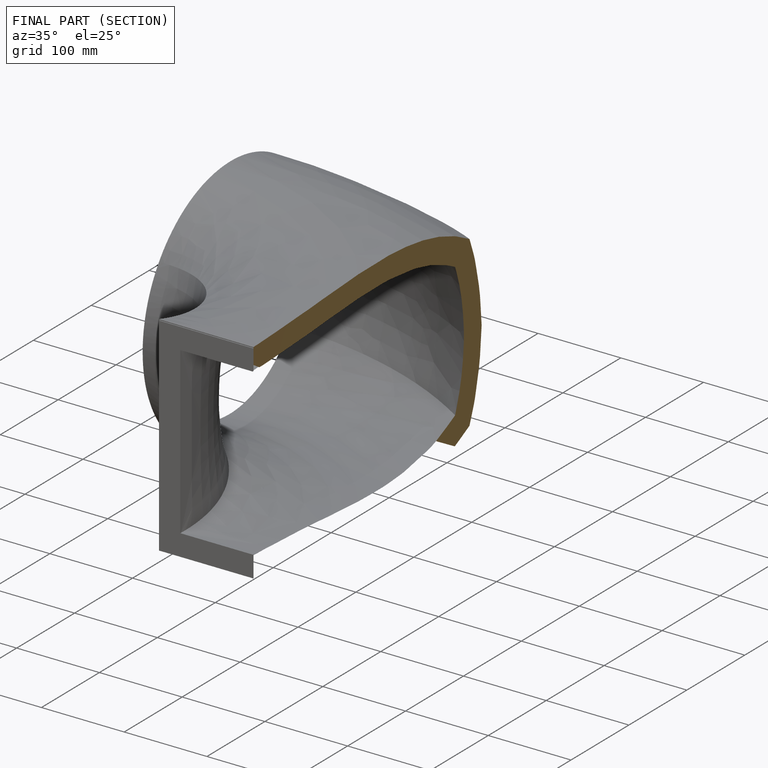
[diagram: finished part — half-section view (interior)]
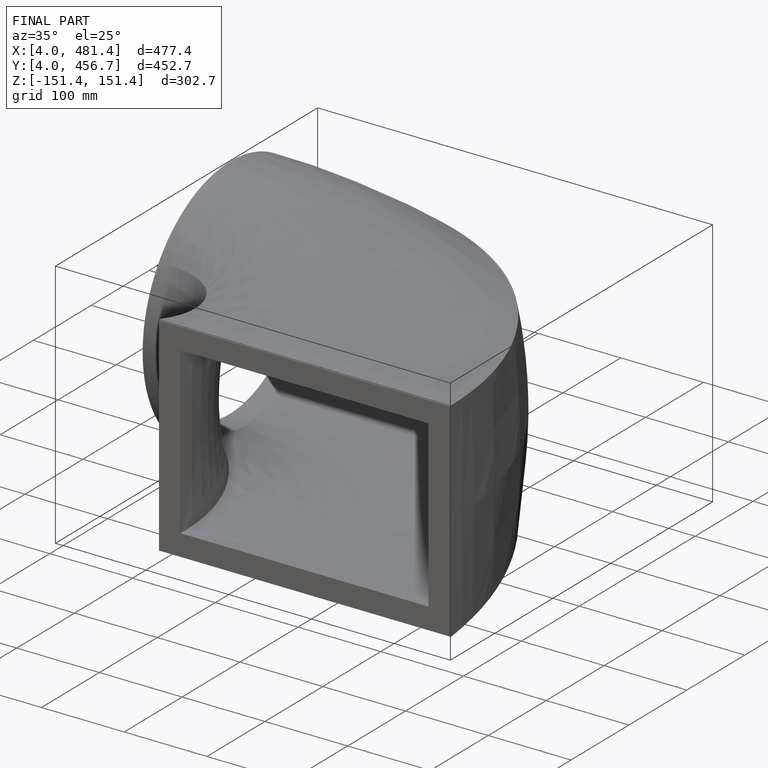
[diagram: finished part — iso view with bounding-box wireframe]
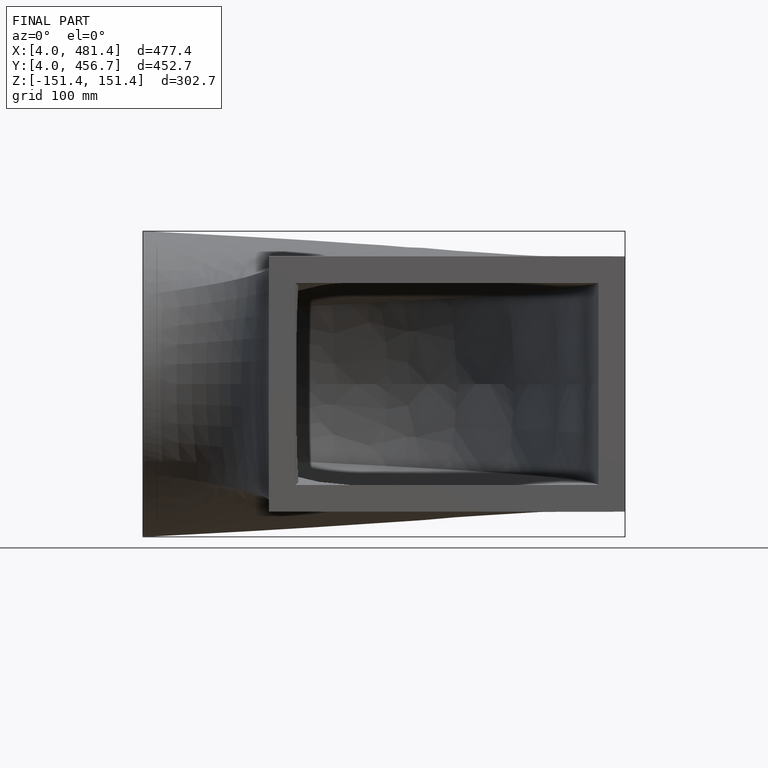
[diagram: finished part — front view with bounding-box wireframe]
